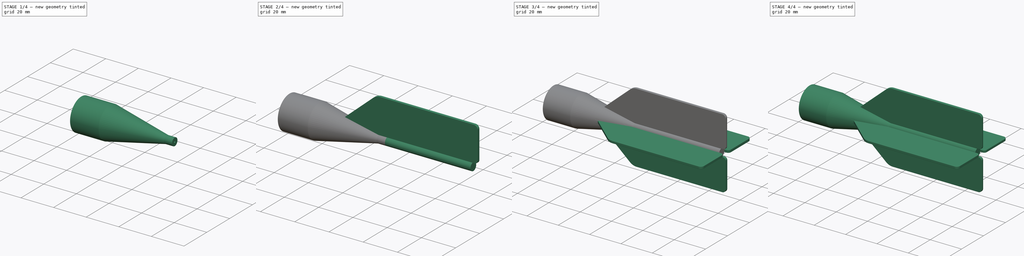
[diagram: build sequence overview — one tinted view per stage of 4, left to right]
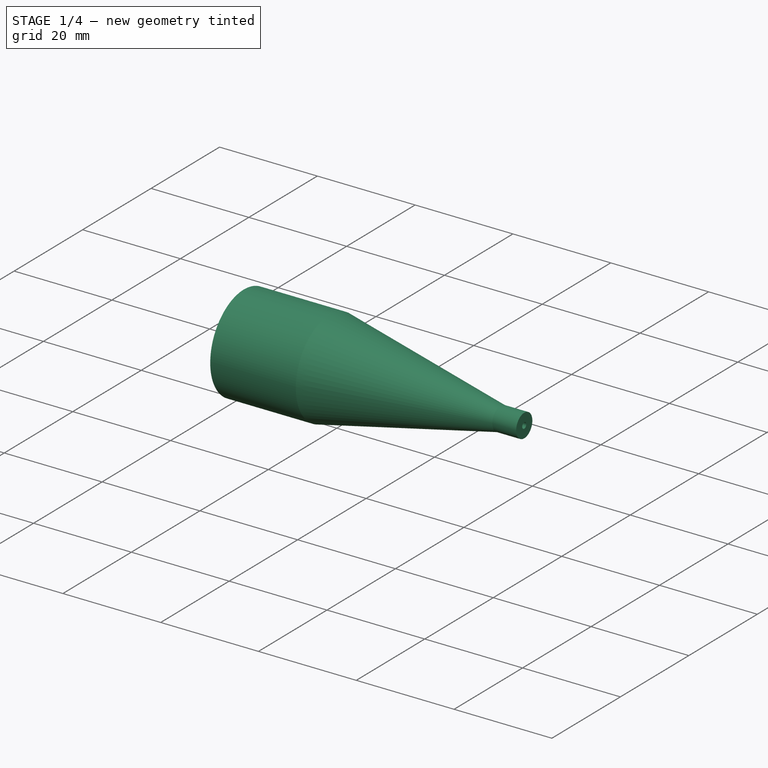
[diagram: stage 1 of 4 — iso view after this stage's code; geometry added in this stage tinted green]
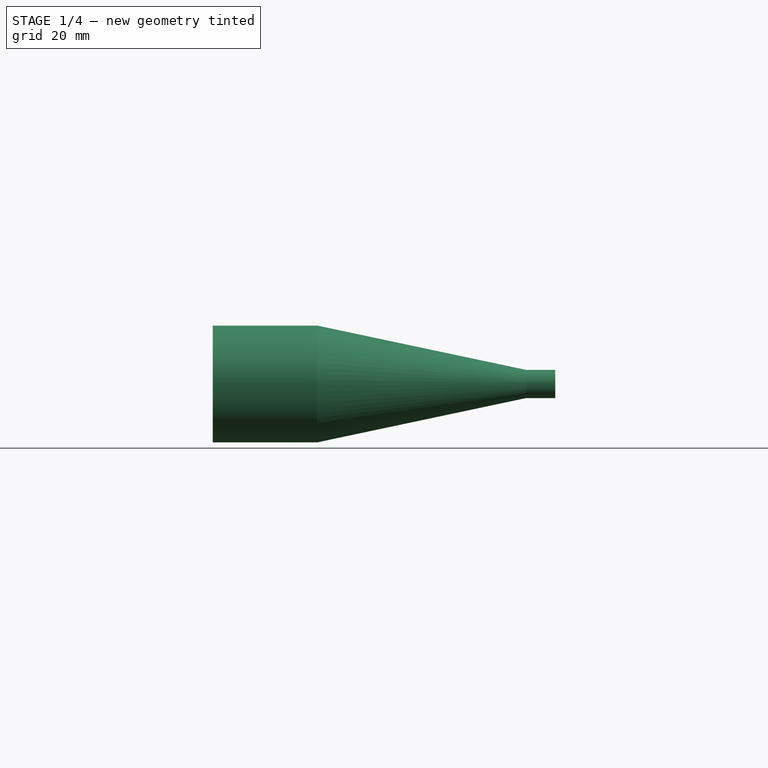
[diagram: stage 1 of 4 — front view after this stage's code; geometry added in this stage tinted green]
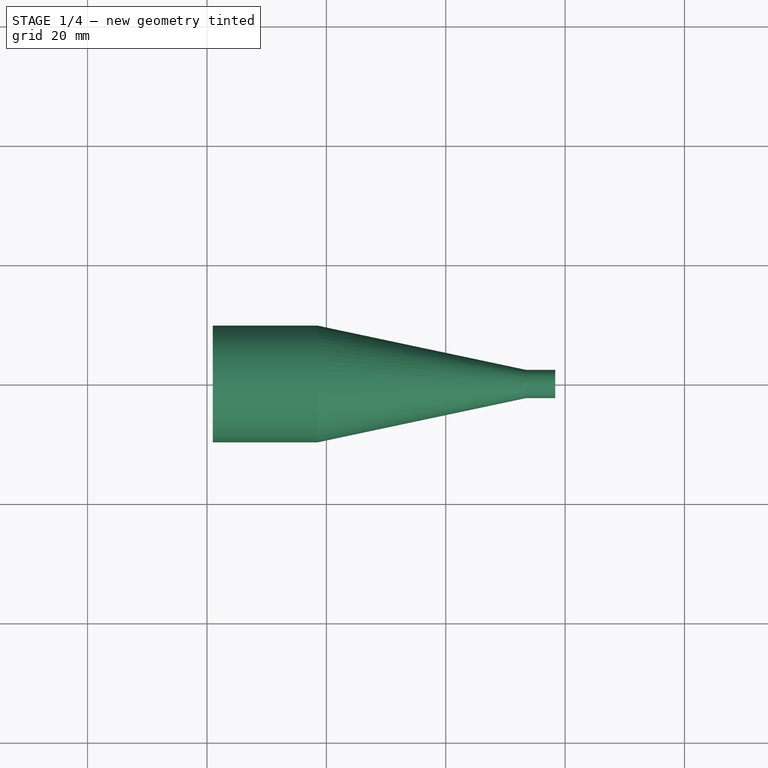
[diagram: stage 1 of 4 — top view after this stage's code; geometry added in this stage tinted green]
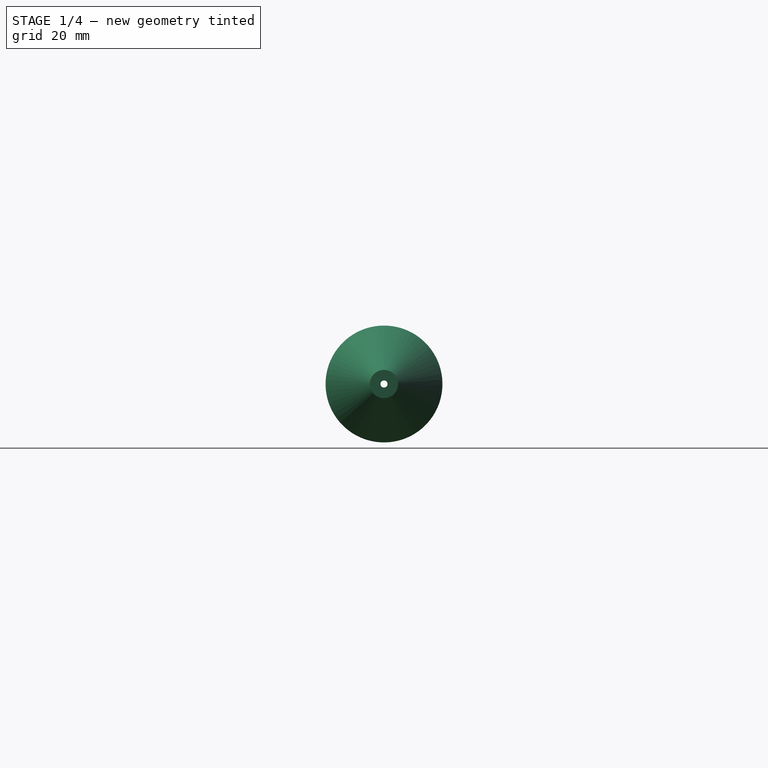
[diagram: stage 1 of 4 — right view after this stage's code; geometry added in this stage tinted green]
FCSTD DOCUMENT  (FreeCAD 0.21R33771 (Git))
Label: vog-17-2
License: All rights reserved
LicenseURL: http://en.wikipedia.org/wiki/All_rights_reserved
objects: Sketcher::SketchObject×5, PartDesign::Fillet×4, PartDesign::Pad×2, PartDesign::Revolution×1, PartDesign::Pocket×1, PartDesign::PolarPattern×1, PartDesign::Body×1
note: 23 computed .brp shape members not serialized (recipe doc carries the construction recipe); baked Part::Feature solids carry a one-line shape summary decoded from their .brp

FEATURE [Sketcher::SketchObject] Sketch
  AttachmentOffset = pos=(0,-11,0) rot=(0,0,1;0rad)
  FullyConstrained = false
  MapMode = 5
  Placement = pos=(0,-2.4e-15,-11) rot=(1,0,0;1.5708rad)
  Support = -> [XZ_Plane]
  sketch-geometry (14):
    g0: LineSegment StartX=0.972993 StartY=20.7871 StartZ=0 EndX=0.972993 EndY=19.8308 EndZ=0
    g1: LineSegment StartX=0.972993 StartY=19.8308 StartZ=0 EndX=1.39437 EndY=19.8308 EndZ=0
    g2: LineSegment StartX=18.0728 StartY=19.8308 StartZ=0 EndX=19.7165 EndY=17.697 EndZ=0
    g3: LineSegment StartX=0.972993 StartY=20.7871 StartZ=0 EndX=18.4773 EndY=20.7871 EndZ=0
    g4: LineSegment StartX=18.4773 StartY=20.7871 StartZ=0 EndX=53.468 EndY=13.3622 EndZ=0
    g5: LineSegment StartX=53.468 StartY=13.3622 StartZ=0 EndX=58.3387 EndY=13.3622 EndZ=0
    g6: LineSegment StartX=19.7165 StartY=17.697 StartZ=0 EndX=51.4946 EndY=11.5864 EndZ=0
    g7: LineSegment StartX=51.4946 StartY=11.5864 StartZ=0 EndX=58.3387 EndY=11.5864 EndZ=0
    g8: LineSegment StartX=58.3387 StartY=11.5864 StartZ=0 EndX=58.3387 EndY=13.3622 EndZ=0
    g9: LineSegment StartX=1.39437 StartY=19.8308 StartZ=0 EndX=1.39437 EndY=18.5154 EndZ=0
    g10: LineSegment StartX=1.39437 StartY=18.5154 StartZ=0 EndX=1.56067 EndY=18.5154 EndZ=0
    g11: LineSegment StartX=1.56067 StartY=18.5154 StartZ=0 EndX=2.06071 EndY=19.2246 EndZ=0
    g12: LineSegment StartX=2.06071 StartY=19.2246 StartZ=0 EndX=2.06071 EndY=19.8308 EndZ=0
    g13: LineSegment StartX=2.06071 StartY=19.8308 StartZ=0 EndX=18.0728 EndY=19.8308 EndZ=0
  constraints (23):
    c: Coincident(g1,g0)
    c: Horizontal(g1)
    c: Coincident(g2,g13)
    c: Coincident(g3,g0)
    c: Horizontal(g3)
    c: Vertical(g0)
    c: Horizontal(g5)
    c: Coincident(g6,g2)
    c: Coincident(g7,g6)
    c: Horizontal(g7)
    c: Coincident(g5,g8)
    c: Vertical(g8)
    c: Vertical(g9)
    c: Horizontal(g10)
    c: Coincident(g11,g10)
    c: Coincident(g9,g10)
    c: Coincident(g11,g12)
    c: Vertical(g12)
    c: Coincident(g1,g9)
    c: Coincident(g13,g12)
    c: Coincident(g7,g8)
    c: Coincident(g5,g4)
    c: Coincident(g3,g4)
FEATURE [PartDesign::Revolution] Revolution
  Angle = 360
  Axis = (1,0,0)
  Base = (0,0,0)
  Placement = pos=(0,0,0) rot=(1,0,0;1.5708rad)
  Profile = -> Sketch
  ReferenceAxis = -> X_Axis
  Refine = true
FEATURE [Sketcher::SketchObject] Sketch001
  FullyConstrained = false
  MapMode = 5
  Placement = pos=(1.39437,0,0) rot=(0.707107,0,-0.707107;3.14159rad)
  Support = -> [Revolution]
  sketch-geometry (7):
    g0: ArcOfCircle CenterX=0 CenterY=0 CenterZ=0 NormalX=0 NormalY=0 NormalZ=1 AngleXU=0 Radius=8.79099 StartAngle=1.43319 EndAngle=1.7084
    g1: LineSegment StartX=-1.20584 StartY=-8.7079 StartZ=0 EndX=-1.20584 EndY=8.7079 EndZ=0
    g2: LineSegment StartX=-1.20584 StartY=8.7079 StartZ=0 EndX=1.20584 EndY=8.7079 EndZ=0
    g3: LineSegment StartX=1.20584 StartY=8.7079 StartZ=0 EndX=1.20584 EndY=-8.7079 EndZ=0
    g4: LineSegment StartX=1.20584 StartY=-8.7079 StartZ=0 EndX=-1.20584 EndY=-8.7079 EndZ=0
    g5: GeomPoint X=0 Y=0 Z=0
    g6: ArcOfCircle CenterX=0 CenterY=0 CenterZ=0 NormalX=0 NormalY=0 NormalZ=1 AngleXU=0 Radius=8.79099 StartAngle=4.57479 EndAngle=4.84999
  constraints (16):
    c: Coincident(g0,g-1)
    c: Coincident(g1,g2)
    c: Coincident(g2,g3)
    c: Coincident(g3,g4)
    c: Coincident(g4,g1)
    c: Horizontal(g2)
    c: Horizontal(g4)
    c: Vertical(g1)
    c: Vertical(g3)
    c: Symmetric(g2,g1,g5)
    c: Coincident(g5,g0)
    c: Coincident(g6,g3)
    c: Coincident(g0,g2)
    c: PointOnObject(g0,g1)
    c: PointOnObject(g6,g1)
    c: Coincident(g0,g6)
FEATURE [PartDesign::Pocket] Pocket
  BaseFeature = -> Revolution
  Direction = (1,0,2e-16)
  Length = 5
  Length2 = 5
  Placement = pos=(0,0,0) rot=(1,0,0;1.5708rad)
  Profile = -> Sketch001
  ReferenceAxis = -> Sketch001 [N_Axis]
  Refine = true
  Type = 0
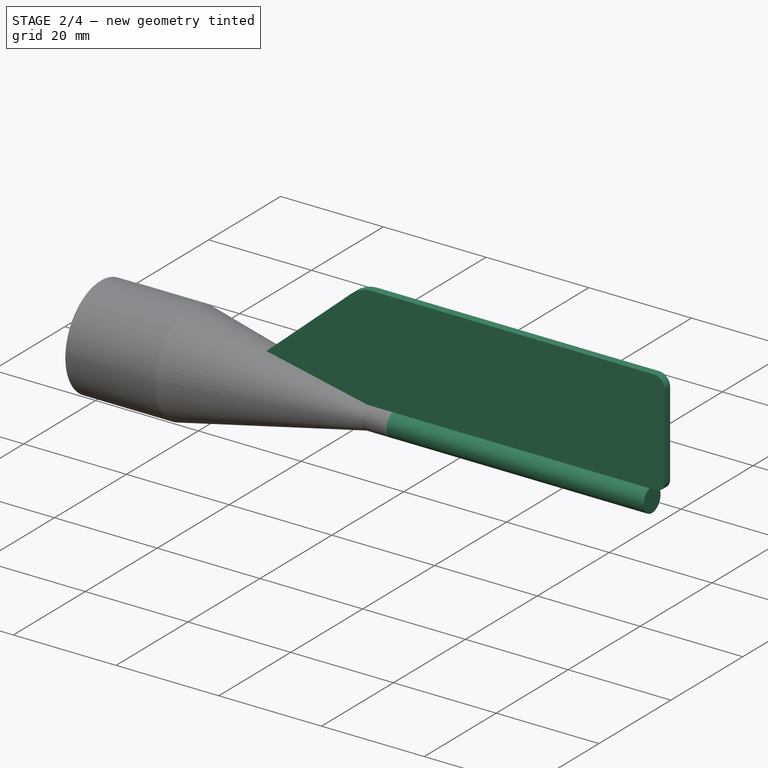
[diagram: stage 2 of 4 — iso view after this stage's code; geometry added in this stage tinted green]
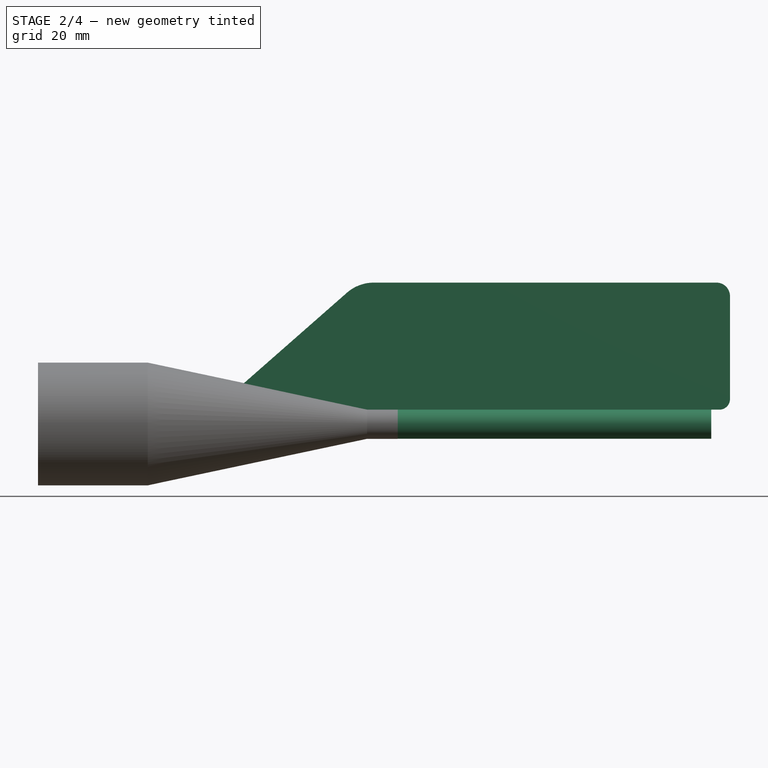
[diagram: stage 2 of 4 — front view after this stage's code; geometry added in this stage tinted green]
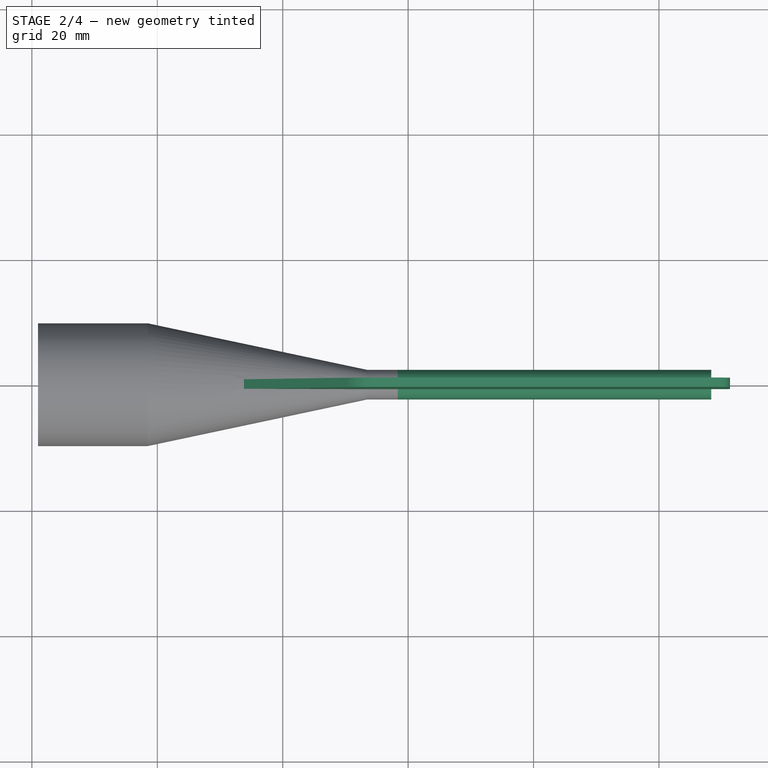
[diagram: stage 2 of 4 — top view after this stage's code; geometry added in this stage tinted green]
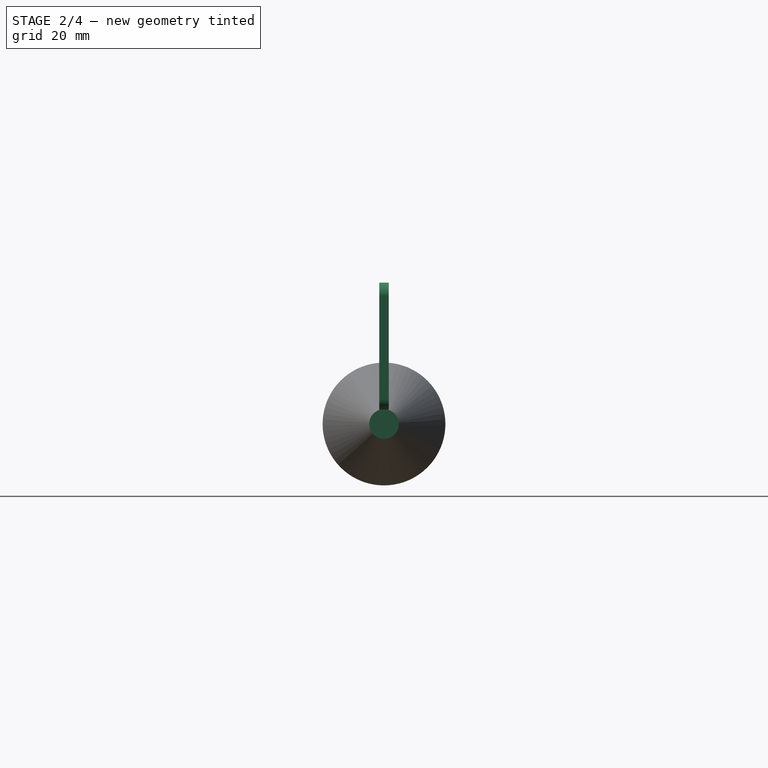
[diagram: stage 2 of 4 — right view after this stage's code; geometry added in this stage tinted green]
FEATURE [Sketcher::SketchObject] Sketch002
  FullyConstrained = true
  MapMode = 5
  Support = -> [XY_Plane]
FEATURE [Sketcher::SketchObject] Sketch003
  FullyConstrained = false
  MapMode = 5
  Placement = pos=(58.3387,0,0) rot=(0.707107,0,0.707107;3.14159rad)
  Support = -> [Pocket]
  sketch-geometry (2):
    g0: GeomPoint X=0 Y=0 Z=0
    g1: Circle CenterX=0 CenterY=0 CenterZ=0 NormalX=0 NormalY=0 NormalZ=1 AngleXU=0 Radius=2.35684
  constraints (2):
    c: Coincident(g0,g-1)
    c: Coincident(g1,g0)
FEATURE [PartDesign::Pad] Pad
  BaseFeature = -> Pocket
  Direction = (1,0,-2e-16)
  Length = 50
  Length2 = 10
  Placement = pos=(0,0,0) rot=(1,0,0;1.5708rad)
  Profile = -> Sketch003
  ReferenceAxis = -> Sketch003 [N_Axis]
  Refine = true
  Type = 0
FEATURE [Sketcher::SketchObject] Sketch004
  FullyConstrained = false
  MapMode = 5
  Placement = pos=(0,0,0) rot=(1,0,0;1.5708rad)
  Support = -> [XZ_Plane]
  sketch-geometry (8):
    g0: LineSegment StartX=33.7683 StartY=6.47415 StartZ=0 EndX=50.2385 EndY=20.9376 EndZ=0
    g1: LineSegment StartX=54.5119 StartY=22.5476 StartZ=0 EndX=109.168 EndY=22.5476 EndZ=0
    g2: LineSegment StartX=111.328 StartY=20.3877 StartZ=0 EndX=111.328 EndY=3.97967 EndZ=0
    g3: LineSegment StartX=109.633 StartY=2.28541 StartZ=0 EndX=53.4979 EndY=2.28541 EndZ=0
    g4: LineSegment StartX=53.4979 StartY=2.28541 StartZ=0 EndX=33.7683 EndY=6.47415 EndZ=0
    g5: ArcOfCircle CenterX=109.633 CenterY=3.97967 CenterZ=0 NormalX=0 NormalY=0 NormalZ=1 AngleXU=0 Radius=1.69426 StartAngle=4.71239 EndAngle=6.28319
    g6: ArcOfCircle CenterX=109.168 CenterY=20.3877 CenterZ=0 NormalX=0 NormalY=0 NormalZ=1 AngleXU=0 Radius=2.15998 StartAngle=0 EndAngle=1.5708
    g7: ArcOfCircle CenterX=54.5119 CenterY=16.0713 CenterZ=0 NormalX=0 NormalY=0 NormalZ=1 AngleXU=0 Radius=6.47634 StartAngle=1.5708 EndAngle=2.29141
  constraints (11):
    c: Horizontal(g1)
    c: Vertical(g2)
    c: Horizontal(g3)
    c: Coincident(g4,g0)
    c: Tangent(g3,g5) = 1.5708
    c: Tangent(g2,g5) = 1.5708
    c: Tangent(g1,g6) = 1.5708
    c: Tangent(g2,g6) = 1.5708
    c: Tangent(g1,g7) = 1.5708
    c: Tangent(g0,g7) = 1.5708
    c: Coincident(g4,g3)
FEATURE [PartDesign::Pad] Pad001
  BaseFeature = -> Pad
  Direction = (0,-1,2e-16)
  Length = 1.5
  Length2 = 10
  Midplane = true
  Placement = pos=(0,0,0) rot=(1,0,0;1.5708rad)
  Profile = -> Sketch004
  ReferenceAxis = -> Sketch004 [N_Axis]
  Refine = true
  Type = 0
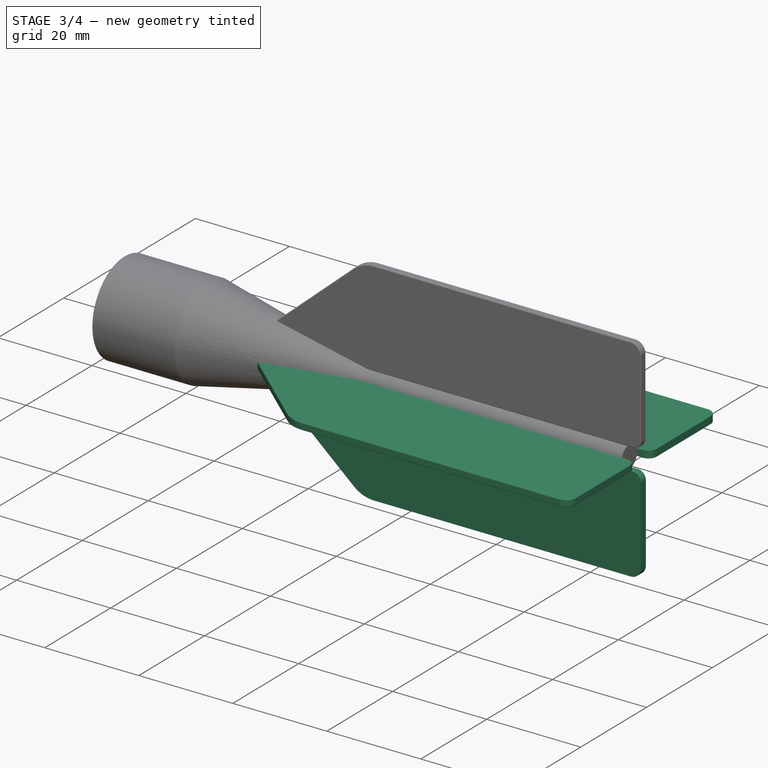
[diagram: stage 3 of 4 — iso view after this stage's code; geometry added in this stage tinted green]
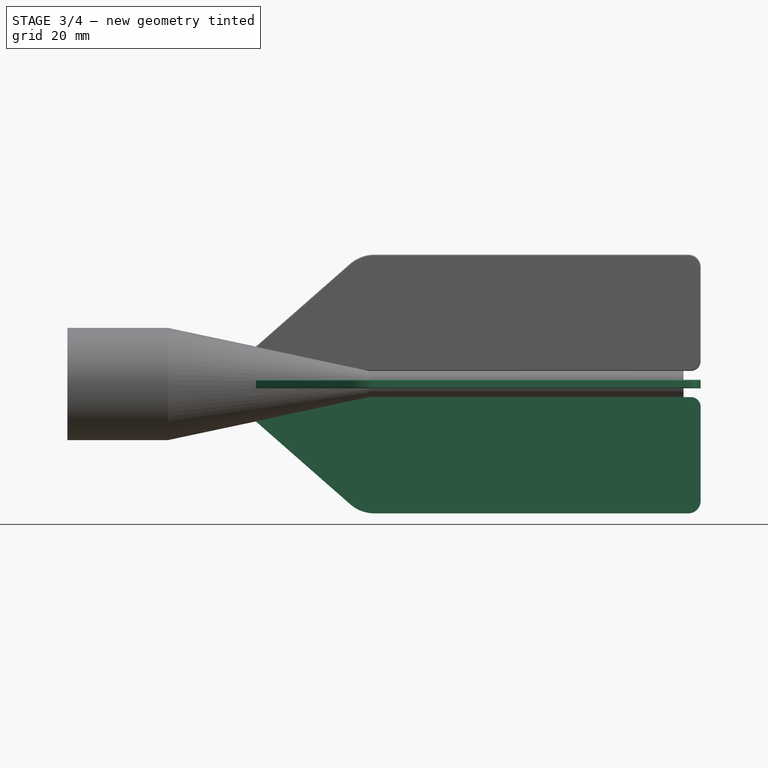
[diagram: stage 3 of 4 — front view after this stage's code; geometry added in this stage tinted green]
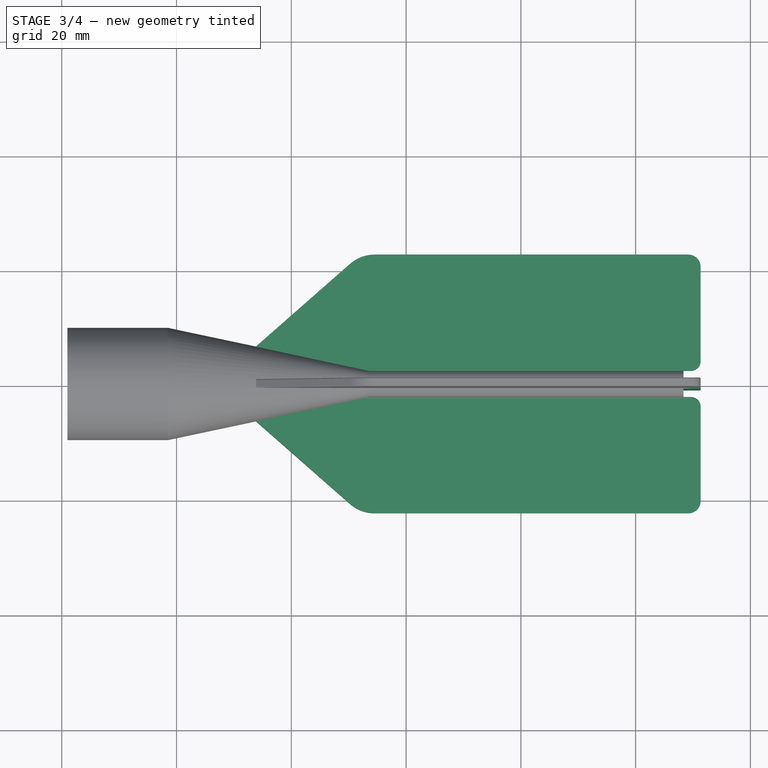
[diagram: stage 3 of 4 — top view after this stage's code; geometry added in this stage tinted green]
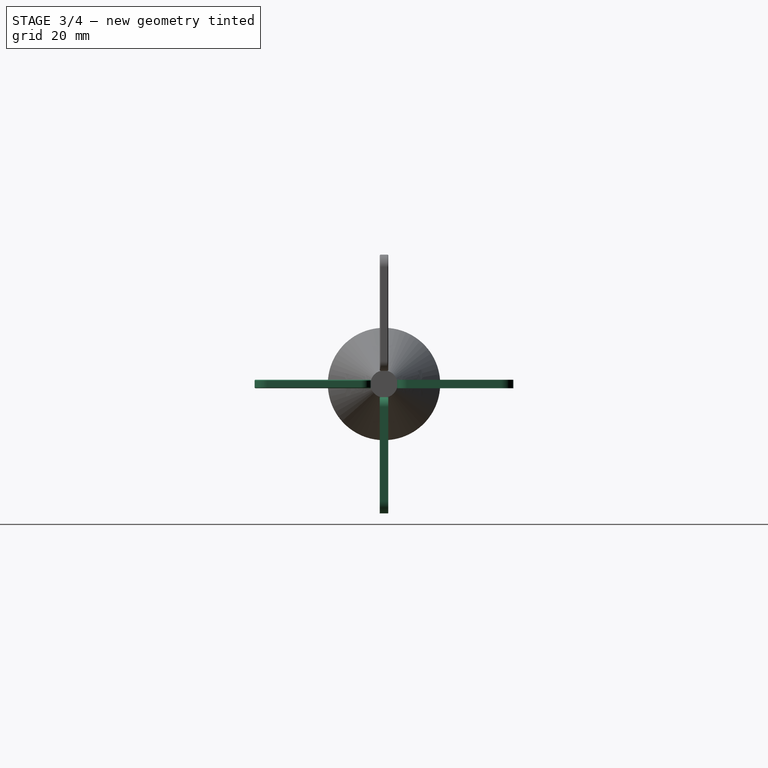
[diagram: stage 3 of 4 — right view after this stage's code; geometry added in this stage tinted green]
FEATURE [PartDesign::PolarPattern] PolarPattern
  Angle = 360
  Axis = -> X_Axis
  BaseFeature = -> Pad001
  Occurrences = 4
  Originals = -> [Pad001]
  Placement = pos=(0,0,0) rot=(1,0,0;1.5708rad)
  Refine = true
FEATURE [PartDesign::Fillet] Fillet
  Base = -> PolarPattern [Edge33,Edge35,Edge40,Edge127,Edge30,Edge6,Edge39,Edge126,Edge38,Edge125,Edge37,Edge36,Edge42,Edge128,Edge123,Edge124]
  BaseFeature = -> PolarPattern
  Placement = pos=(0,0,0) rot=(1,0,0;1.5708rad)
  Radius = 0.2
  Refine = true
  SupportTransform = false
  UseAllEdges = false
FEATURE [PartDesign::Fillet] Fillet001
  Base = -> Fillet [Edge88,Edge82,Edge73,Edge67,Edge68,Edge83]
  BaseFeature = -> Fillet
  Placement = pos=(0,0,0) rot=(1,0,0;1.5708rad)
  Radius = 0.2
  Refine = true
  SupportTransform = false
  UseAllEdges = false
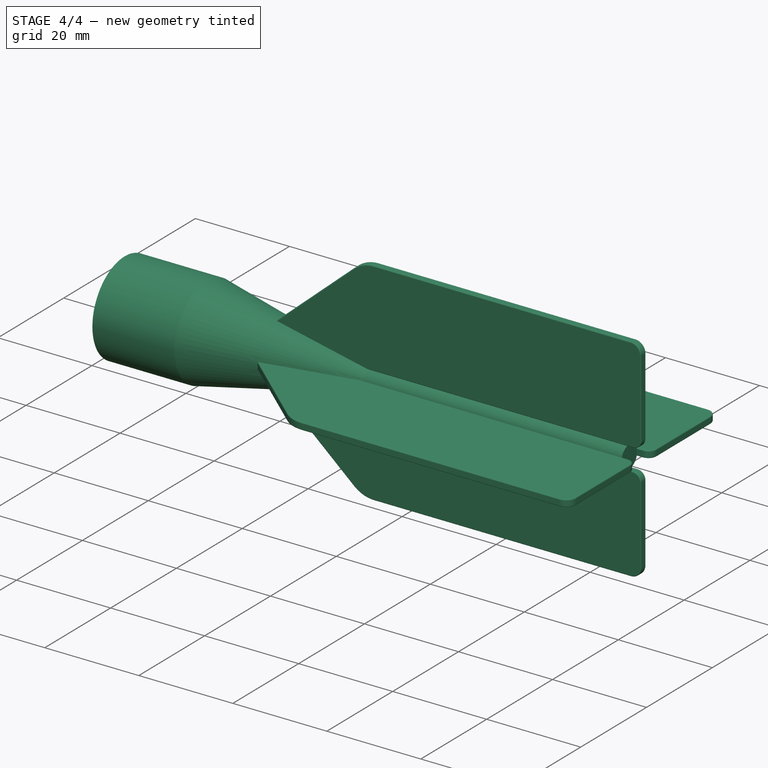
[diagram: stage 4 of 4 — iso view after this stage's code; geometry added in this stage tinted green]
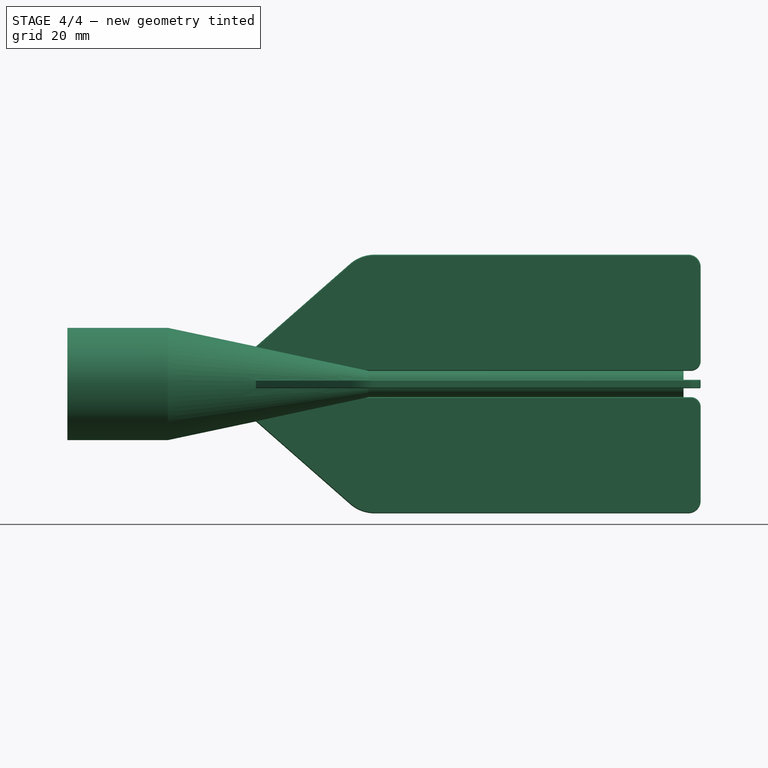
[diagram: stage 4 of 4 — front view after this stage's code; geometry added in this stage tinted green]
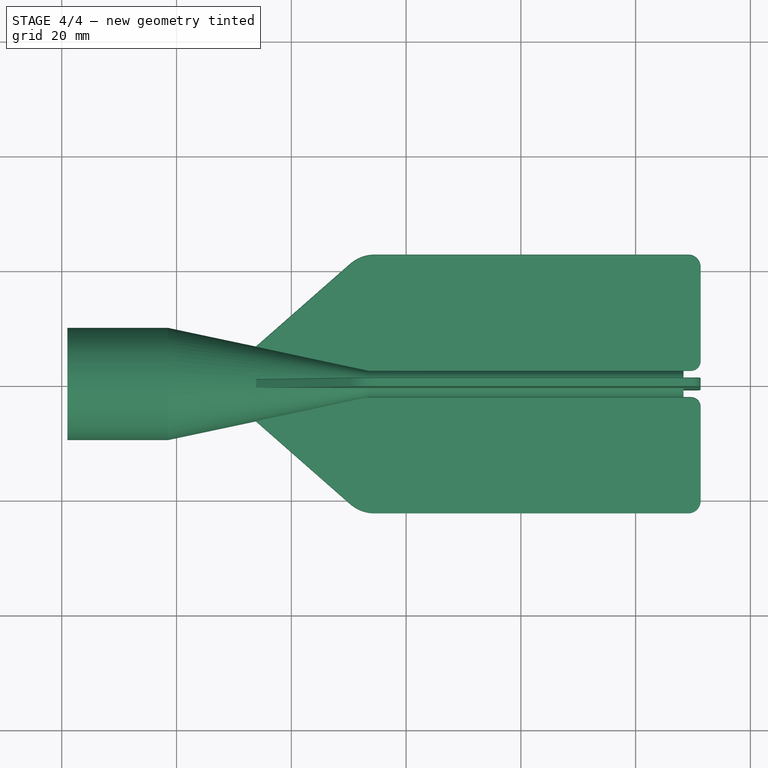
[diagram: stage 4 of 4 — top view after this stage's code; geometry added in this stage tinted green]
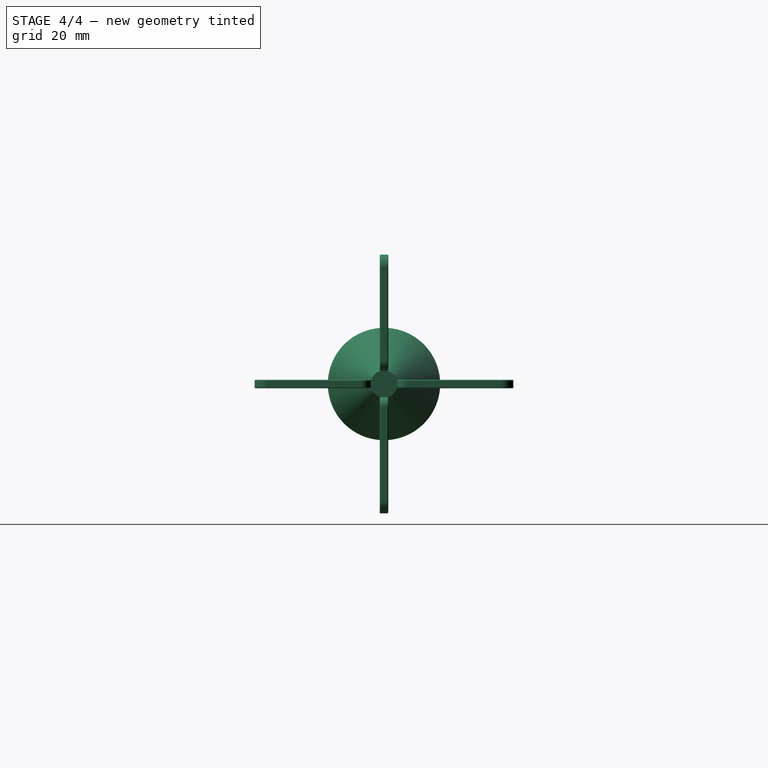
[diagram: stage 4 of 4 — right view after this stage's code; geometry added in this stage tinted green]
FEATURE [PartDesign::Fillet] Fillet002
  Base = -> Fillet001 [Edge87,Edge98,Edge92,Edge81,Edge82,Edge93]
  BaseFeature = -> Fillet001
  Placement = pos=(0,0,0) rot=(1,0,0;1.5708rad)
  Radius = 0.2
  Refine = true
  SupportTransform = false
  UseAllEdges = false
FEATURE [PartDesign::Fillet] Fillet003
  Base = -> Fillet002 [Edge108,Edge90,Edge84,Edge85,Edge103,Edge102]
  BaseFeature = -> Fillet002
  Placement = pos=(0,0,0) rot=(1,0,0;1.5708rad)
  Radius = 0.2
  Refine = true
  SupportTransform = false
  UseAllEdges = false
FEATURE [PartDesign::Body] Body
  Group = -> [Sketch,Revolution,Sketch001,Pocket,Sketch002,Sketch003,Pad,Sketch004,Pad001,PolarPattern,Fillet,Fillet001,Fillet002,Fillet003]
  Origin = -> Origin
  Tip = -> Fillet003
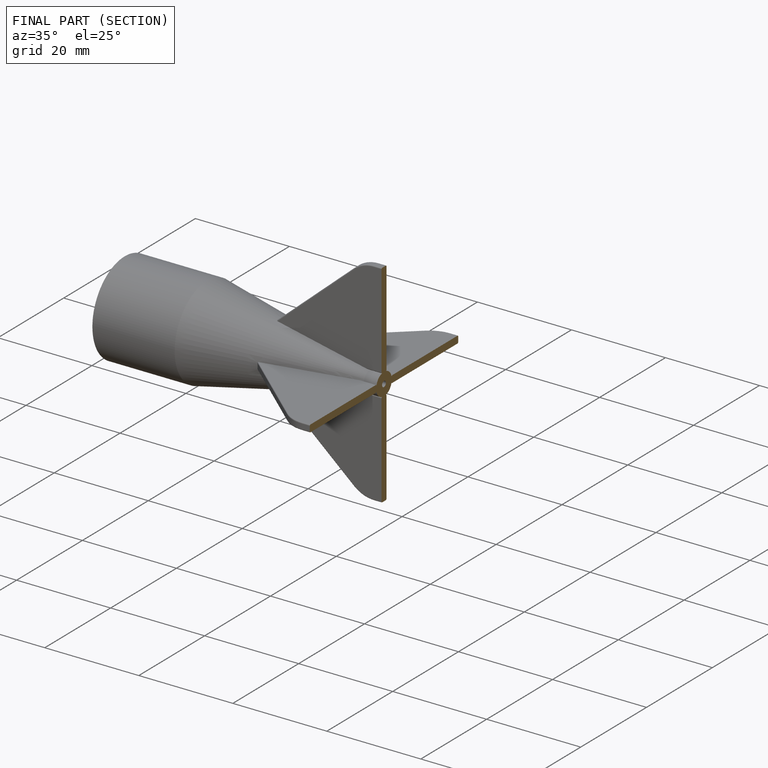
[diagram: finished part — half-section view (interior)]
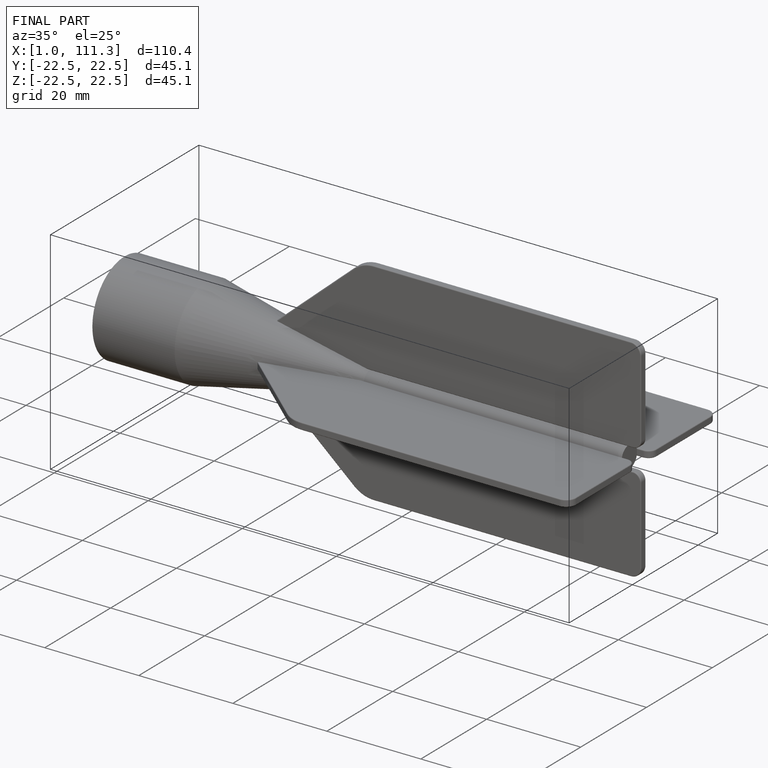
[diagram: finished part — iso view with bounding-box wireframe]
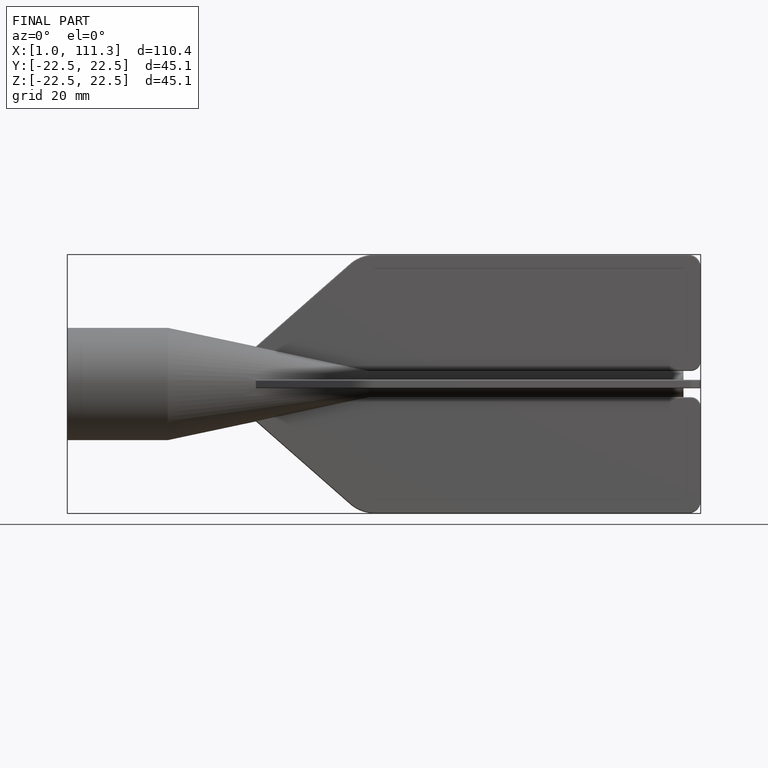
[diagram: finished part — front view with bounding-box wireframe]
